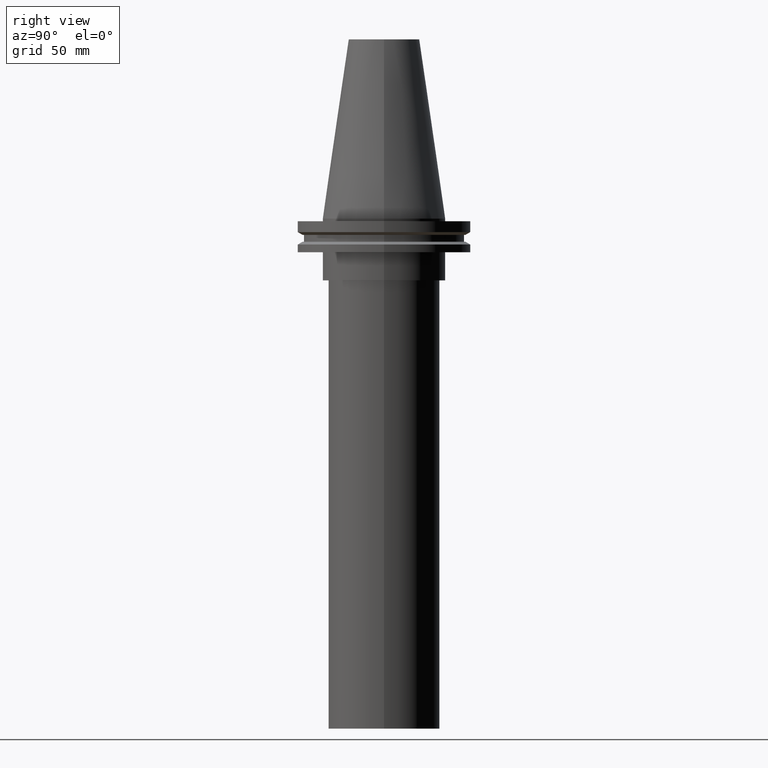
[diagram: clean part render]
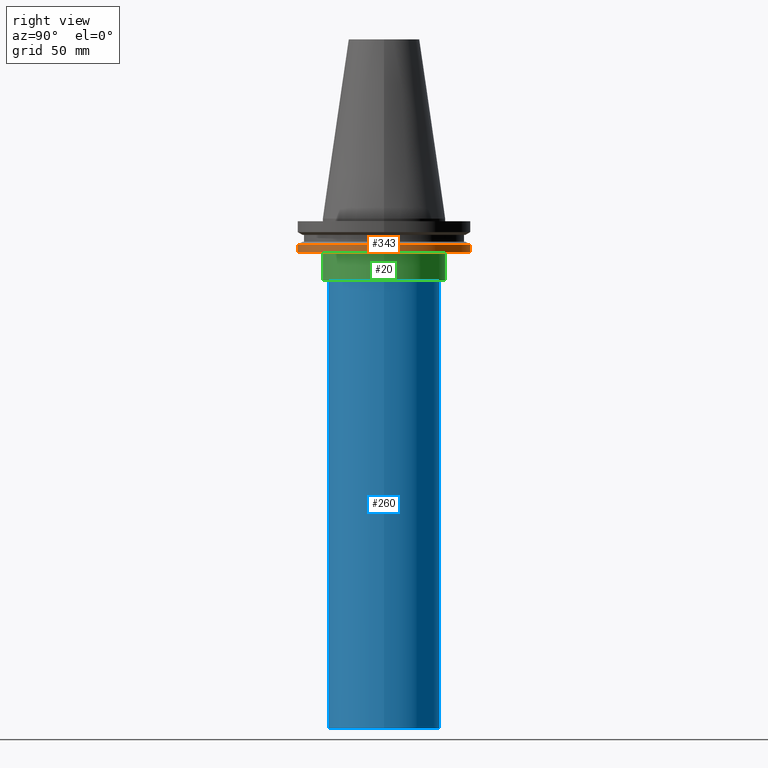
[diagram: same view with three faces highlighted in distinct colors, each labeled with its STEP entity id]
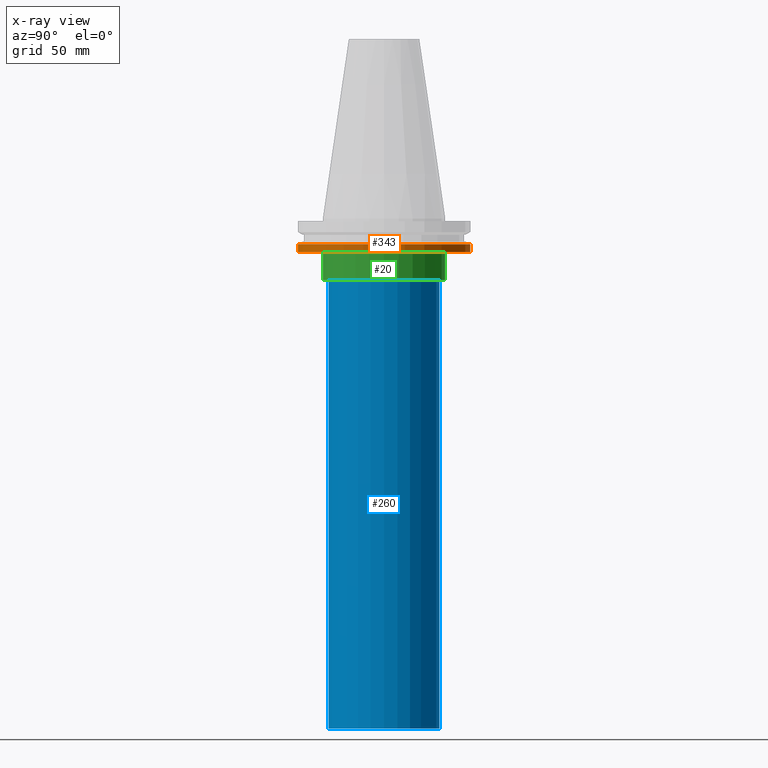
[diagram: x-ray of the same camera — body ghosted, the three highlighted faces saturated]
A machine part, right view with three faces highlighted in distinct colors.
The next image is the same camera in x-ray (body ghosted, the three faces saturated) — at least one of them is partly hidden behind the body in this view.
Their STEP definitions:

[orange] entity #343 — the highlighted cylindrical surface (bore or boss wall) has radius 49.215 mm, axis along (-0, -0, 1).
#4 = CARTESIAN_POINT ( 'NONE',  ( 0.000000000000000000, 0.000000000000000000, 101.5999999999999943 ) ) ;
#11 = EDGE_LOOP ( 'NONE', ( #306 ) ) ;
#15 = CARTESIAN_POINT ( 'NONE',  ( 49.21499999999998920, 0.000000000000000000, -14.65761014474876944 ) ) ;
#16 = EDGE_CURVE ( 'NONE', #378, #378, #138, .T. ) ;
#60 = FACE_OUTER_BOUND ( 'NONE', #11, .T. ) ;
#64 = DIRECTION ( 'NONE',  ( -0.000000000000000000, -0.000000000000000000, 1.000000000000000000 ) ) ;
#86 = CIRCLE ( 'NONE', #338, 49.21499999999998920 ) ;
#87 = CARTESIAN_POINT ( 'NONE',  ( 0.000000000000000000, 0.000000000000000000, -14.65761014474876944 ) ) ;
#101 = DIRECTION ( 'NONE',  ( -0.000000000000000000, -0.000000000000000000, 1.000000000000000000 ) ) ;
#106 = VERTEX_POINT ( 'NONE', #15 ) ;
#133 = DIRECTION ( 'NONE',  ( 1.000000000000000000, 0.000000000000000000, 0.000000000000000000 ) ) ;
#138 = CIRCLE ( 'NONE', #285, 49.21499999999998920 ) ;
#151 = FACE_OUTER_BOUND ( 'NONE', #208, .T. ) ;
#164 = CARTESIAN_POINT ( 'NONE',  ( 49.21499999999998920, 0.000000000000000000, -19.04999999999999716 ) ) ;
#183 = EDGE_CURVE ( 'NONE', #106, #106, #86, .T. ) ;
#204 = DIRECTION ( 'NONE',  ( -0.000000000000000000, -0.000000000000000000, 1.000000000000000000 ) ) ;
#208 = EDGE_LOOP ( 'NONE', ( #371 ) ) ;
#224 = DIRECTION ( 'NONE',  ( 1.000000000000000000, 0.000000000000000000, 0.000000000000000000 ) ) ;
#285 = AXIS2_PLACEMENT_3D ( 'NONE', #374, #101, #133 ) ;
#301 = CYLINDRICAL_SURFACE ( 'NONE', #318, 49.21499999999998920 ) ;
#306 = ORIENTED_EDGE ( 'NONE', *, *, #183, .F. ) ;
#310 = DIRECTION ( 'NONE',  ( 1.000000000000000000, 0.000000000000000000, 0.000000000000000000 ) ) ;
#318 = AXIS2_PLACEMENT_3D ( 'NONE', #4, #64, #310 ) ;
#338 = AXIS2_PLACEMENT_3D ( 'NONE', #87, #204, #224 ) ;
#343 = ADVANCED_FACE ( 'NONE', ( #60, #151 ), #301, .T. ) ;
#371 = ORIENTED_EDGE ( 'NONE', *, *, #16, .T. ) ;
#374 = CARTESIAN_POINT ( 'NONE',  ( 0.000000000000000000, 0.000000000000000000, -19.04999999999999716 ) ) ;
#378 = VERTEX_POINT ( 'NONE', #164 ) ;

[blue] entity #260 — the highlighted cylindrical surface (bore or boss wall) has radius 31.635 mm, axis along (-0, -0, 1).
#3 = EDGE_CURVE ( 'NONE', #98, #98, #148, .T. ) ;
#41 = FACE_OUTER_BOUND ( 'NONE', #326, .T. ) ;
#43 = DIRECTION ( 'NONE',  ( -0.000000000000000000, -0.000000000000000000, 1.000000000000000000 ) ) ;
#53 = DIRECTION ( 'NONE',  ( 1.000000000000000000, 0.000000000000000000, 0.000000000000000000 ) ) ;
#55 = CARTESIAN_POINT ( 'NONE',  ( 0.000000000000000000, 0.000000000000000000, -35.00000000000000000 ) ) ;
#65 = AXIS2_PLACEMENT_3D ( 'NONE', #245, #43, #269 ) ;
#68 = CARTESIAN_POINT ( 'NONE',  ( 31.63500000000000512, 0.000000000000000000, -288.9999999999999432 ) ) ;
#98 = VERTEX_POINT ( 'NONE', #68 ) ;
#107 = CIRCLE ( 'NONE', #354, 31.63500000000000512 ) ;
#108 = CARTESIAN_POINT ( 'NONE',  ( 31.63500000000000512, 0.000000000000000000, -35.00000000000000000 ) ) ;
#148 = CIRCLE ( 'NONE', #337, 31.63500000000000512 ) ;
#160 = VERTEX_POINT ( 'NONE', #108 ) ;
#165 = EDGE_CURVE ( 'NONE', #160, #160, #107, .T. ) ;
#217 = DIRECTION ( 'NONE',  ( -0.000000000000000000, -0.000000000000000000, 1.000000000000000000 ) ) ;
#245 = CARTESIAN_POINT ( 'NONE',  ( 0.000000000000000000, 0.000000000000000000, 0.000000000000000000 ) ) ;
#253 = CARTESIAN_POINT ( 'NONE',  ( 0.000000000000000000, 0.000000000000000000, -288.9999999999999432 ) ) ;
#260 = ADVANCED_FACE ( 'NONE', ( #304, #41 ), #368, .T. ) ;
#269 = DIRECTION ( 'NONE',  ( 1.000000000000000000, 0.000000000000000000, 0.000000000000000000 ) ) ;
#276 = ORIENTED_EDGE ( 'NONE', *, *, #3, .T. ) ;
#283 = EDGE_LOOP ( 'NONE', ( #303 ) ) ;
#303 = ORIENTED_EDGE ( 'NONE', *, *, #165, .F. ) ;
#304 = FACE_OUTER_BOUND ( 'NONE', #283, .T. ) ;
#321 = DIRECTION ( 'NONE',  ( -0.000000000000000000, -0.000000000000000000, 1.000000000000000000 ) ) ;
#326 = EDGE_LOOP ( 'NONE', ( #276 ) ) ;
#337 = AXIS2_PLACEMENT_3D ( 'NONE', #253, #217, #341 ) ;
#341 = DIRECTION ( 'NONE',  ( 1.000000000000000000, 0.000000000000000000, 0.000000000000000000 ) ) ;
#354 = AXIS2_PLACEMENT_3D ( 'NONE', #55, #321, #53 ) ;
#368 = CYLINDRICAL_SURFACE ( 'NONE', #65, 31.63500000000000512 ) ;

[green] entity #20 — the highlighted cylindrical surface (bore or boss wall) has radius 34.925 mm, axis along (-0, -0, 1).
#13 = DIRECTION ( 'NONE',  ( 1.000000000000000000, 0.000000000000000000, 0.000000000000000000 ) ) ;
#20 = ADVANCED_FACE ( 'NONE', ( #44, #163 ), #72, .T. ) ;
#23 = CIRCLE ( 'NONE', #348, 34.92499999999999716 ) ;
#38 = EDGE_LOOP ( 'NONE', ( #210 ) ) ;
#39 = DIRECTION ( 'NONE',  ( -0.000000000000000000, -0.000000000000000000, 1.000000000000000000 ) ) ;
#44 = FACE_OUTER_BOUND ( 'NONE', #38, .T. ) ;
#52 = EDGE_CURVE ( 'NONE', #75, #75, #23, .T. ) ;
#72 = CYLINDRICAL_SURFACE ( 'NONE', #235, 34.92499999999999716 ) ;
#75 = VERTEX_POINT ( 'NONE', #195 ) ;
#131 = EDGE_LOOP ( 'NONE', ( #191 ) ) ;
#163 = FACE_OUTER_BOUND ( 'NONE', #131, .T. ) ;
#173 = CARTESIAN_POINT ( 'NONE',  ( 0.000000000000000000, 0.000000000000000000, -19.04999999999999716 ) ) ;
#191 = ORIENTED_EDGE ( 'NONE', *, *, #232, .T. ) ;
#193 = CARTESIAN_POINT ( 'NONE',  ( 0.000000000000000000, 0.000000000000000000, 101.5999999999999943 ) ) ;
#195 = CARTESIAN_POINT ( 'NONE',  ( 34.92499999999999716, 0.000000000000000000, -19.04999999999999716 ) ) ;
#210 = ORIENTED_EDGE ( 'NONE', *, *, #52, .F. ) ;
#232 = EDGE_CURVE ( 'NONE', #313, #313, #305, .T. ) ;
#235 = AXIS2_PLACEMENT_3D ( 'NONE', #193, #311, #13 ) ;
#305 = CIRCLE ( 'NONE', #325, 34.92499999999999716 ) ;
#311 = DIRECTION ( 'NONE',  ( -0.000000000000000000, -0.000000000000000000, 1.000000000000000000 ) ) ;
#313 = VERTEX_POINT ( 'NONE', #375 ) ;
#317 = DIRECTION ( 'NONE',  ( -0.000000000000000000, -0.000000000000000000, 1.000000000000000000 ) ) ;
#324 = DIRECTION ( 'NONE',  ( 1.000000000000000000, 0.000000000000000000, 0.000000000000000000 ) ) ;
#325 = AXIS2_PLACEMENT_3D ( 'NONE', #361, #39, #340 ) ;
#340 = DIRECTION ( 'NONE',  ( 1.000000000000000000, 0.000000000000000000, 0.000000000000000000 ) ) ;
#348 = AXIS2_PLACEMENT_3D ( 'NONE', #173, #317, #324 ) ;
#361 = CARTESIAN_POINT ( 'NONE',  ( 0.000000000000000000, 0.000000000000000000, -35.00000000000000000 ) ) ;
#375 = CARTESIAN_POINT ( 'NONE',  ( 34.92499999999999716, 0.000000000000000000, -35.00000000000000000 ) ) ;